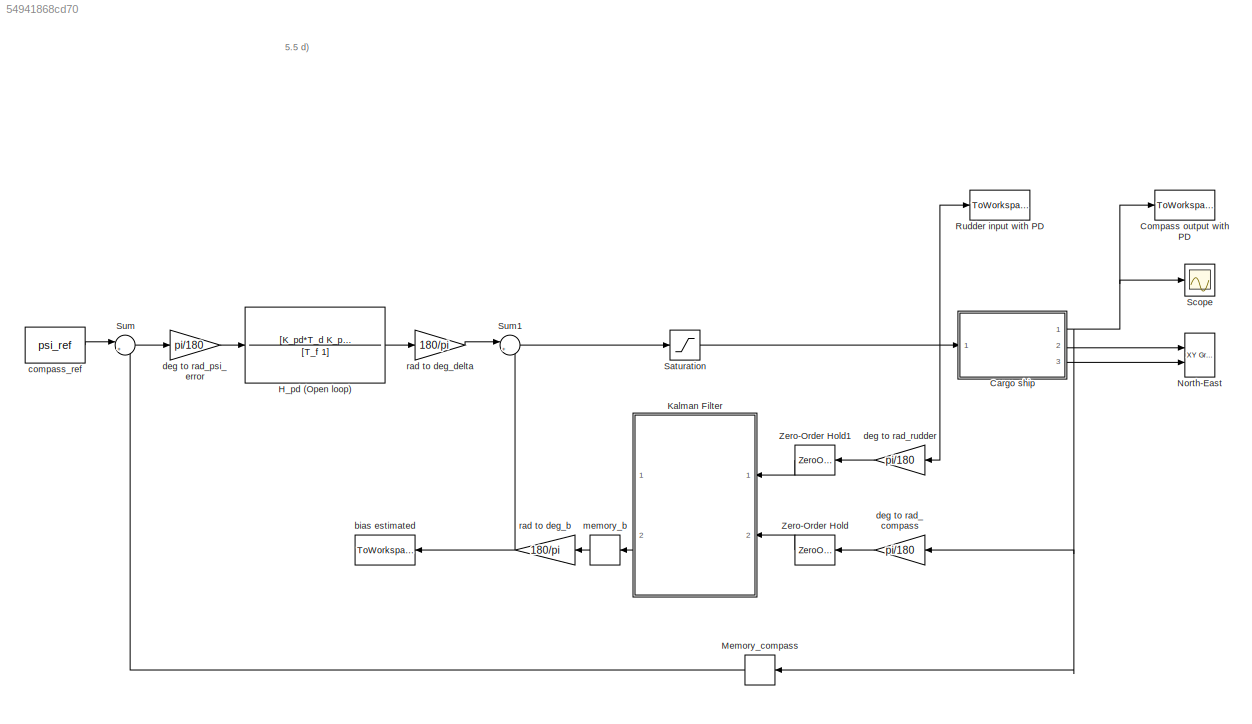
MODEL slx_54941868cd70
KIND model
CONFIG AbsTol = auto
CONFIG EnableMultiTasking = on
CONFIG FixedStep = auto
CONFIG MaxStep = auto
CONFIG MinStep = auto
CONFIG RelTol = 1e-3
CONFIG SampleTimeConstraint = Unconstrained
CONFIG Solver = ode45
CONFIG SolverName = ode45
CONFIG StartTime = 0.0
CONFIG StopTime = 5000
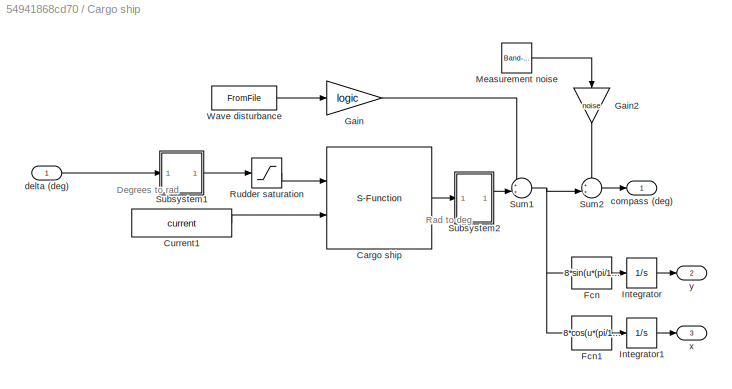
BLOCK [SubSystem] Cargo ship
  Ports = [1, 3]
  RequestExecContextInheritance = off
  Variant = off
BLOCK [S-Function] Cargo ship/Cargo ship
  EnableBusSupport = off
  FunctionName = Cargoship
  Ports = [2, 1]
  SFcnIsStateOwnerBlock = off
  SFunctionDeploymentMode = off
BLOCK [Constant] Cargo ship/Current1
  Value = current
BLOCK [Fcn] Cargo ship/Fcn
  Expr = 8*sin(u*(pi/180))
BLOCK [Fcn] Cargo ship/Fcn1
  Expr = 8*cos(u*(pi/180))
BLOCK [Gain] Cargo ship/Gain
  Gain = logic
BLOCK [Gain] Cargo ship/Gain2
  Gain = noise
BLOCK [Integrator] Cargo ship/Integrator
  Ports = [1, 1]
BLOCK [Integrator] Cargo ship/Integrator1
  Ports = [1, 1]
BLOCK [Reference] Cargo ship/Measurement noise  REF=simulink/Sources/Band-Limited
White Noise
  Ports = [0, 1]
  SourceBlock = simulink/Sources/Band-Limited\nWhite Noise
  SourceProductBaseCode = SL
  SourceProductName = Simulink
  SourceType = Band-Limited White Noise.
BLOCK [Saturate] Cargo ship/Rudder saturation
  InputPortMap = u0
  LowerLimit = -45*(pi/180)
  Ports = [1, 1]
  UpperLimit = 45*(pi/180)
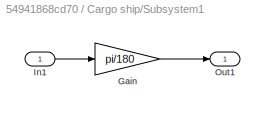
BLOCK [SubSystem] Cargo ship/Subsystem1
  Ports = [1, 1]
  RequestExecContextInheritance = off
  Variant = off
BLOCK [Gain] Cargo ship/Subsystem1/Gain
  Gain = pi/180
BLOCK [Inport] Cargo ship/Subsystem1/In1
  IconDisplay = Port number
BLOCK [Outport] Cargo ship/Subsystem1/Out1
  IconDisplay = Port number
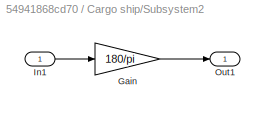
BLOCK [SubSystem] Cargo ship/Subsystem2
  Ports = [1, 1]
  RequestExecContextInheritance = off
  Variant = off
BLOCK [Gain] Cargo ship/Subsystem2/Gain
  Gain = 180/pi
BLOCK [Inport] Cargo ship/Subsystem2/In1
  IconDisplay = Port number
BLOCK [Outport] Cargo ship/Subsystem2/Out1
  IconDisplay = Port number
BLOCK [Sum] Cargo ship/Sum1
  IconShape = round
  InputSameDT = off
  Inputs = ++|
  OutDataTypeStr = Inherit: Inherit via internal rule
  Ports = [2, 1]
BLOCK [Sum] Cargo ship/Sum2
  IconShape = round
  InputSameDT = off
  Inputs = ++|
  OutDataTypeStr = Inherit: Inherit via internal rule
  Ports = [2, 1]
BLOCK [FromFile] Cargo ship/Wave disturbance
  FileName = wave.mat
  SampleTime = 0
BLOCK [Outport] Cargo ship/compass (deg)
  IconDisplay = Port number
BLOCK [Inport] Cargo ship/delta (deg)
  IconDisplay = Port number
BLOCK [Outport] Cargo ship/x
  IconDisplay = Port number
  Port = 3
BLOCK [Outport] Cargo ship/y
  IconDisplay = Port number
  Port = 2
BLOCK [ToWorkspace] Compass output with PD
  FixptAsFi = on
  MaxDataPoints = inf
  Ports = [1]
  SampleTime = -1
  Save2DSignal = 3-D array (concatenate along third dimension)
  SaveFormat = Structure With Time
  VariableName = compass_course
BLOCK [TransferFcn] H_pd (Open loop)
  Denominator = [T_f 1]
  Numerator = [K_pd*T_d K_pd]
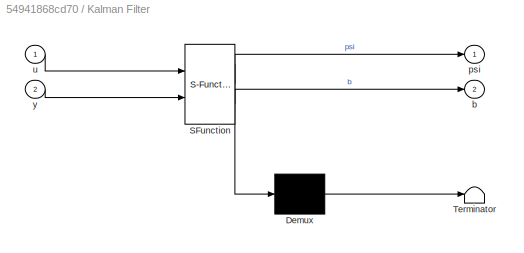
BLOCK [SubSystem] Kalman Filter
  ErrorFcn = Stateflow.Translate.translate
  PermitHierarchicalResolution = ExplicitOnly
  Ports = [2, 2]
  RequestExecContextInheritance = off
  SFBlockType = MATLAB Function
  TreatAsAtomicUnit = on
  Variant = off
BLOCK [Demux] Kalman Filter/ Demux 
  Outputs = 1
  Ports = [1, 1]
BLOCK [S-Function] Kalman Filter/ SFunction 
  EnableBusSupport = on
  FunctionName = sf_sfun
  Parameters = data
  PortCounts = [2 3]
  Ports = [2, 3]
  SFcnIsStateOwnerBlock = off
  SFunctionDeploymentMode = off
  Tag = Stateflow S-Function p5p5d 2
BLOCK [Terminator] Kalman Filter/ Terminator 
BLOCK [Outport] Kalman Filter/b
  IconDisplay = Port number
  Port = 2
BLOCK [Outport] Kalman Filter/psi
  IconDisplay = Port number
BLOCK [Inport] Kalman Filter/u
  IconDisplay = Port number
BLOCK [Inport] Kalman Filter/y
  IconDisplay = Port number
  Port = 2
BLOCK [Memory] Memory_compass
BLOCK [Reference] North-East  REF=simulink/Sinks/XY Graph
  Ports = [2]
  SourceBlock = simulink/Sinks/XY Graph
  SourceProductBaseCode = SL
  SourceProductName = Simulink
  SourceType = XY scope.
BLOCK [ToWorkspace] Rudder input with PD
  FixptAsFi = on
  MaxDataPoints = inf
  Ports = [1]
  SampleTime = -1
  Save2DSignal = 3-D array (concatenate along third dimension)
  SaveFormat = Structure With Time
  VariableName = rudder_input
BLOCK [Saturate] Saturation
  InputPortMap = u0
  LowerLimit = -45
  Ports = [1, 1]
  UpperLimit = 45
BLOCK [Scope] Scope
  NumInputPorts = 1
  Ports = [1]
  ScopeSpecificationString = Simulink.scopes.TimeScopeBlockCfg('CurrentConfiguration', extmgr.ConfigurationSet(extmgr.Configuration('Core','General UI',true),extmgr.Configuration('Core','Source UI',true),extmgr.Configuration('Sources','WiredSimulink',true,'DataLoggingSaveFormat','StructureWithTime','DataLoggingLimitDataPoints',true,'DataLoggingDecimation','1','DataLoggingDecimateData',true),extmgr.Configuration('Visuals','Tim...<+1652ch>
BLOCK [Sum] Sum
  IconShape = round
  InputSameDT = off
  Inputs = |+-
  OutDataTypeStr = Inherit: Inherit via internal rule
  Ports = [2, 1]
  SaturateOnIntegerOverflow = off
BLOCK [Sum] Sum1
  IconShape = round
  InputSameDT = off
  Inputs = |++
  OutDataTypeStr = Inherit: Inherit via internal rule
  Ports = [2, 1]
  SaturateOnIntegerOverflow = off
BLOCK [ZeroOrderHold] Zero-Order Hold
  SampleTime = 0.1
BLOCK [ZeroOrderHold] Zero-Order Hold1
  SampleTime = 0.1
BLOCK [ToWorkspace] bias estimated
  FixptAsFi = on
  MaxDataPoints = inf
  Ports = [1]
  SampleTime = -1
  Save2DSignal = 3-D array (concatenate along third dimension)
  SaveFormat = Structure With Time
  VariableName = bias_estimated
BLOCK [Constant] compass_ref
  Value = psi_ref
BLOCK [Gain] deg to rad_compass
  Gain = pi/180
  OutDataTypeStr = Inherit: Inherit via internal rule
  ParamDataTypeStr = Inherit: Inherit via internal rule
  SaturateOnIntegerOverflow = off
BLOCK [Gain] deg to rad_psi_error
  Gain = pi/180
  OutDataTypeStr = Inherit: Inherit via internal rule
  ParamDataTypeStr = Inherit: Inherit via internal rule
  SaturateOnIntegerOverflow = off
BLOCK [Gain] deg to rad_rudder
  Gain = pi/180
  OutDataTypeStr = Inherit: Inherit via internal rule
  ParamDataTypeStr = Inherit: Inherit via internal rule
  SaturateOnIntegerOverflow = off
BLOCK [Memory] memory_b
BLOCK [Gain] rad to deg_b 
  Gain = 180/pi
  OutDataTypeStr = Inherit: Inherit via internal rule
  ParamDataTypeStr = Inherit: Inherit via internal rule
  SaturateOnIntegerOverflow = off
BLOCK [Gain] rad to deg_delta
  Gain = 180/pi
  OutDataTypeStr = Inherit: Inherit via internal rule
  ParamDataTypeStr = Inherit: Inherit via internal rule
  SaturateOnIntegerOverflow = off
ANNOTATION (root): 5.5 d)
ANNOTATION Cargo ship: Degrees to rad
ANNOTATION Cargo ship: Rad to deg
LINE Cargo ship/Cargo ship:1 -> Cargo ship/Subsystem2:1
LINE Cargo ship/Current1:1 -> Cargo ship/Cargo ship:2
LINE Cargo ship/Fcn1:1 -> Cargo ship/Integrator1:1
LINE Cargo ship/Fcn:1 -> Cargo ship/Integrator:1
LINE Cargo ship/Gain2:1 -> Cargo ship/Sum2:1
LINE Cargo ship/Gain:1 -> Cargo ship/Sum1:1
LINE Cargo ship/Integrator1:1 -> Cargo ship/x:1
LINE Cargo ship/Integrator:1 -> Cargo ship/y:1
LINE Cargo ship/Measurement noise:1 -> Cargo ship/Gain2:1
LINE Cargo ship/Rudder saturation:1 -> Cargo ship/Cargo ship:1
LINE Cargo ship/Subsystem1/Gain:1 -> Cargo ship/Subsystem1/Out1:1
LINE Cargo ship/Subsystem1/In1:1 -> Cargo ship/Subsystem1/Gain:1
LINE Cargo ship/Subsystem1:1 -> Cargo ship/Rudder saturation:1
LINE Cargo ship/Subsystem2/Gain:1 -> Cargo ship/Subsystem2/Out1:1
LINE Cargo ship/Subsystem2/In1:1 -> Cargo ship/Subsystem2/Gain:1
LINE Cargo ship/Subsystem2:1 -> Cargo ship/Sum1:2
NET Cargo ship/Sum1:1 -> Cargo ship/Fcn1:1, Cargo ship/Fcn:1, Cargo ship/Sum2:2
LINE Cargo ship/Sum2:1 -> Cargo ship/compass (deg):1
LINE Cargo ship/Wave disturbance:1 -> Cargo ship/Gain:1
LINE Cargo ship/delta (deg):1 -> Cargo ship/Subsystem1:1
NET Cargo ship:1 -> Compass output with PD:1, Memory_compass:1, Scope:1, deg to rad_compass:1
LINE Cargo ship:2 -> North-East:1
LINE Cargo ship:3 -> North-East:2
LINE H_pd (Open loop):1 -> rad to deg_delta:1
LINE Kalman Filter:2 -> memory_b:1
LINE Memory_compass:1 -> Sum:2
NET Saturation:1 -> Cargo ship:1, Rudder input with PD:1, deg to rad_rudder:1
LINE Sum1:1 -> Saturation:1
LINE Sum:1 -> deg to rad_psi_error:1
LINE Zero-Order Hold1:1 -> Kalman Filter:1
LINE Zero-Order Hold:1 -> Kalman Filter:2
LINE compass_ref:1 -> Sum:1
LINE deg to rad_compass:1 -> Zero-Order Hold:1
LINE deg to rad_psi_error:1 -> H_pd (Open loop):1
LINE deg to rad_rudder:1 -> Zero-Order Hold1:1
LINE memory_b:1 -> rad to deg_b :1
NET rad to deg_b :1 -> Sum1:2, bias estimated:1
LINE rad to deg_delta:1 -> Sum1:1
note: NET lines group one-source signal fan-out (src -> all destinations, sorted); 1:1 wires keep LINE
CHART Kalman Filter states=1 transitions=1
  STATE_LABEL 'eML_blk_kernel()'
  STATE_LABEL "SCRIPT:\nfunction [psi,b]=kalman_matl_func(u,y,data)\npersistent init_flag A_k B_k C_k E_k I_k P_pri Q_k R_k x_pri;\n\nif isempty(init_flag)\n    init_flag=1;\n    [A_k, B_k, C_k, E_k, I_k, P_pri, Q_k, R_k, x_pri]=deal(data.A_d, data.B_d, data.C_d, data.E_d, data.I, data.P_0, data.Q, data.R_rad_d, data.x_0);\nend\n% 1:Compute Kalman Gain\nL_k=P_pri*C_k'*inv(C_k*P_pri*C_k' + R_k);\n\n% 2: Update estimate with...<+280ch>"
